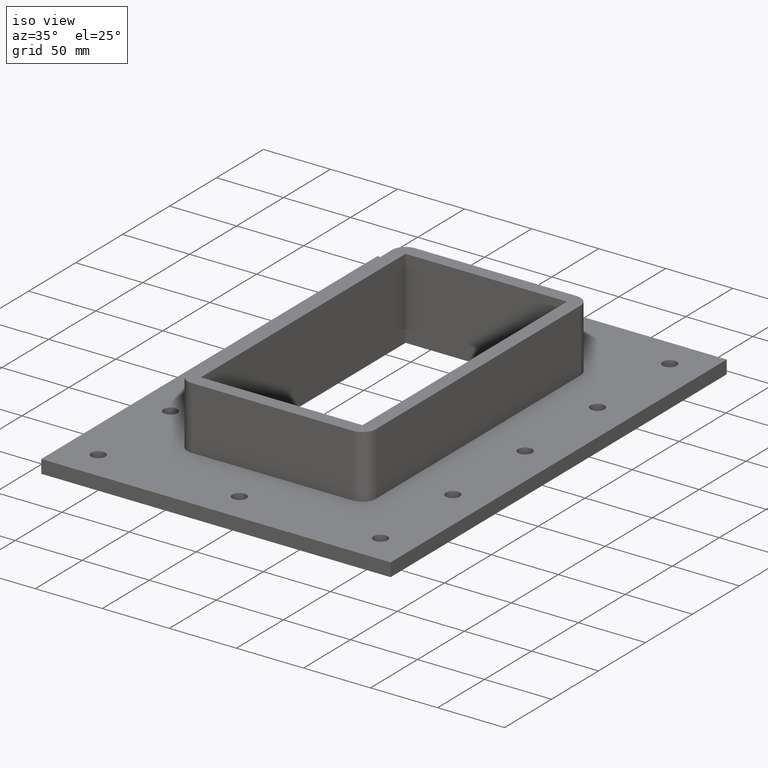
[diagram: clean part render]
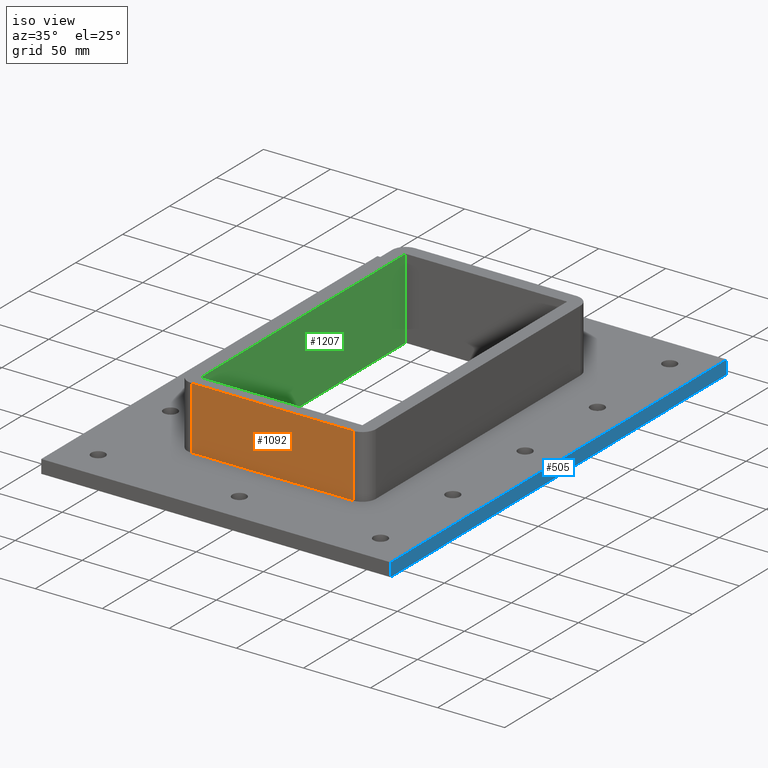
[diagram: same view with three faces highlighted in distinct colors, each labeled with its STEP entity id]
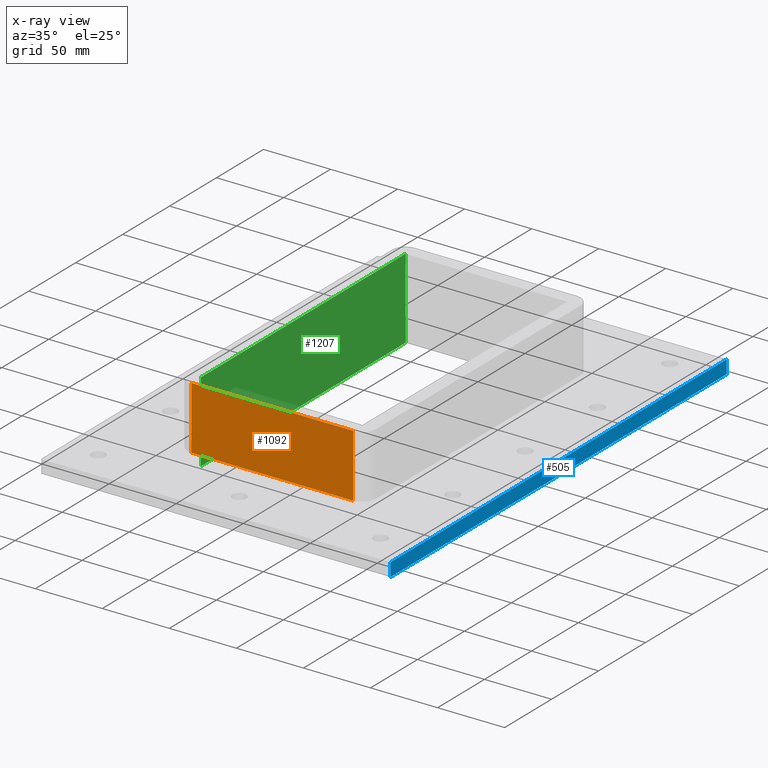
[diagram: x-ray of the same camera — body ghosted, the three highlighted faces saturated]
A machine part, iso view with three faces highlighted in distinct colors.
The next image is the same camera in x-ray (body ghosted, the three faces saturated) — at least one of them is partly hidden behind the body in this view.
Their STEP definitions:

[orange] entity #1092 — the highlighted planar face has unit normal (0, -1, 0).
#594=CARTESIAN_POINT('',(60.250000000000021,-118.99999999999999,-17.0));
#595=VERTEX_POINT('',#594);
#603=CARTESIAN_POINT('',(-60.249999999999986,-118.99999999999999,-17.0));
#604=VERTEX_POINT('',#603);
#605=CARTESIAN_POINT('',(-60.249999999999986,-119.00000000000006,-17.0));
#606=DIRECTION('',(1.0,0.0,0.0));
#607=VECTOR('',#606,120.50000000000001);
#608=LINE('',#605,#607);
#609=EDGE_CURVE('',#604,#595,#608,.T.);
#810=CARTESIAN_POINT('',(60.25000000000005,-119.00000000000006,30.0));
#811=VERTEX_POINT('',#810);
#819=CARTESIAN_POINT('',(60.250000000000043,-119.00000000000006,30.0));
#820=DIRECTION('',(0.0,0.0,-1.0));
#821=VECTOR('',#820,47.0);
#822=LINE('',#819,#821);
#823=EDGE_CURVE('',#811,#595,#822,.T.);
#1069=CARTESIAN_POINT('',(-70.249999999999957,-119.00000000000006,0.0));
#1070=DIRECTION('',(0.0,-1.0,0.0));
#1071=DIRECTION('',(1.0,0.0,0.0));
#1072=AXIS2_PLACEMENT_3D('',#1069,#1070,#1071);
#1073=PLANE('',#1072);
#1074=ORIENTED_EDGE('',*,*,#609,.T.);
#1075=ORIENTED_EDGE('',*,*,#823,.F.);
#1076=CARTESIAN_POINT('',(-60.249999999999957,-119.00000000000006,30.0));
#1077=VERTEX_POINT('',#1076);
#1078=CARTESIAN_POINT('',(-60.249999999999957,-119.00000000000006,30.0));
#1079=DIRECTION('',(1.0,0.0,0.0));
#1080=VECTOR('',#1079,120.5);
#1081=LINE('',#1078,#1080);
#1082=EDGE_CURVE('',#1077,#811,#1081,.T.);
#1083=ORIENTED_EDGE('',*,*,#1082,.F.);
#1084=CARTESIAN_POINT('',(-60.249999999999957,-119.00000000000006,-17.0));
#1085=DIRECTION('',(0.0,0.0,1.0));
#1086=VECTOR('',#1085,47.0);
#1087=LINE('',#1084,#1086);
#1088=EDGE_CURVE('',#604,#1077,#1087,.T.);
#1089=ORIENTED_EDGE('',*,*,#1088,.F.);
#1090=EDGE_LOOP('',(#1074,#1075,#1083,#1089));
#1091=FACE_OUTER_BOUND('',#1090,.T.);
#1092=ADVANCED_FACE('',(#1091),#1073,.T.);

[blue] entity #505 — the highlighted planar face has unit normal (1, 0, 0).
#449=CARTESIAN_POINT('',(130.25,179.00000000000006,-27.0));
#450=VERTEX_POINT('',#449);
#458=CARTESIAN_POINT('',(130.25,179.00000000000006,-17.0));
#459=VERTEX_POINT('',#458);
#466=CARTESIAN_POINT('',(130.25,179.00000000000006,-27.0));
#467=DIRECTION('',(0.0,0.0,1.0));
#468=VECTOR('',#467,10.0);
#469=LINE('',#466,#468);
#470=EDGE_CURVE('',#450,#459,#469,.T.);
#475=CARTESIAN_POINT('',(130.25000000000003,-179.0,-27.0));
#476=DIRECTION('',(1.0,0.0,0.0));
#477=DIRECTION('',(0.0,1.0,0.0));
#478=AXIS2_PLACEMENT_3D('',#475,#476,#477);
#479=PLANE('',#478);
#480=CARTESIAN_POINT('',(130.25000000000003,-179.0,-27.0));
#481=VERTEX_POINT('',#480);
#482=CARTESIAN_POINT('',(130.25,179.00000000000006,-27.0));
#483=DIRECTION('',(0.0,-1.0,0.0));
#484=VECTOR('',#483,358.00000000000006);
#485=LINE('',#482,#484);
#486=EDGE_CURVE('',#450,#481,#485,.T.);
#487=ORIENTED_EDGE('',*,*,#486,.F.);
#488=ORIENTED_EDGE('',*,*,#470,.T.);
#489=CARTESIAN_POINT('',(130.25000000000003,-179.0,-17.0));
#490=VERTEX_POINT('',#489);
#491=CARTESIAN_POINT('',(130.25000000000006,-179.0,-17.0));
#492=DIRECTION('',(0.0,1.0,0.0));
#493=VECTOR('',#492,358.00000000000006);
#494=LINE('',#491,#493);
#495=EDGE_CURVE('',#490,#459,#494,.T.);
#496=ORIENTED_EDGE('',*,*,#495,.F.);
#497=CARTESIAN_POINT('',(130.25000000000003,-179.0,-27.0));
#498=DIRECTION('',(0.0,0.0,1.0));
#499=VECTOR('',#498,10.0);
#500=LINE('',#497,#499);
#501=EDGE_CURVE('',#481,#490,#500,.T.);
#502=ORIENTED_EDGE('',*,*,#501,.F.);
#503=EDGE_LOOP('',(#487,#488,#496,#502));
#504=FACE_OUTER_BOUND('',#503,.T.);
#505=ADVANCED_FACE('',(#504),#479,.T.);

[green] entity #1207 — the highlighted planar face has unit normal (-1, 0, 0).
#1044=CARTESIAN_POINT('',(-60.25,108.99999999999739,-30.0));
#1045=VERTEX_POINT('',#1044);
#1052=CARTESIAN_POINT('',(-60.24999999999995,-109.00000000000261,-30.0));
#1053=VERTEX_POINT('',#1052);
#1054=CARTESIAN_POINT('',(-60.250000000000014,108.9999999999974,-30.0));
#1055=DIRECTION('',(0.0,-1.0,0.0));
#1056=VECTOR('',#1055,218.0);
#1057=LINE('',#1054,#1056);
#1058=EDGE_CURVE('',#1045,#1053,#1057,.T.);
#1177=CARTESIAN_POINT('',(-60.24999999999995,-109.00000000000261,30.0));
#1178=DIRECTION('',(-1.0,0.0,0.0));
#1179=DIRECTION('',(0.0,1.0,0.0));
#1180=AXIS2_PLACEMENT_3D('',#1177,#1178,#1179);
#1181=PLANE('',#1180);
#1182=ORIENTED_EDGE('',*,*,#1058,.F.);
#1183=CARTESIAN_POINT('',(-60.25,108.99999999999739,30.0));
#1184=VERTEX_POINT('',#1183);
#1185=CARTESIAN_POINT('',(-60.25,108.99999999999739,30.0));
#1186=DIRECTION('',(0.0,0.0,-1.0));
#1187=VECTOR('',#1186,60.0);
#1188=LINE('',#1185,#1187);
#1189=EDGE_CURVE('',#1184,#1045,#1188,.T.);
#1190=ORIENTED_EDGE('',*,*,#1189,.F.);
#1191=CARTESIAN_POINT('',(-60.24999999999995,-109.00000000000261,30.0));
#1192=VERTEX_POINT('',#1191);
#1193=CARTESIAN_POINT('',(-60.249999999999957,-109.00000000000261,30.0));
#1194=DIRECTION('',(0.0,1.0,0.0));
#1195=VECTOR('',#1194,218.0);
#1196=LINE('',#1193,#1195);
#1197=EDGE_CURVE('',#1192,#1184,#1196,.T.);
#1198=ORIENTED_EDGE('',*,*,#1197,.F.);
#1199=CARTESIAN_POINT('',(-60.24999999999995,-109.00000000000261,30.0));
#1200=DIRECTION('',(0.0,0.0,-1.0));
#1201=VECTOR('',#1200,60.0);
#1202=LINE('',#1199,#1201);
#1203=EDGE_CURVE('',#1192,#1053,#1202,.T.);
#1204=ORIENTED_EDGE('',*,*,#1203,.T.);
#1205=EDGE_LOOP('',(#1182,#1190,#1198,#1204));
#1206=FACE_OUTER_BOUND('',#1205,.T.);
#1207=ADVANCED_FACE('',(#1206),#1181,.F.);